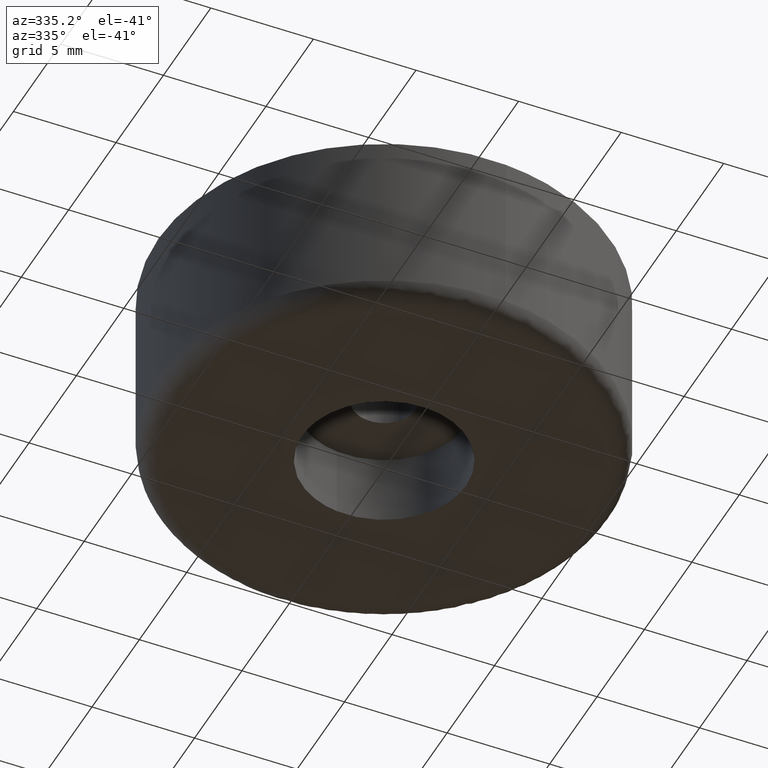
[diagram: clean part render]
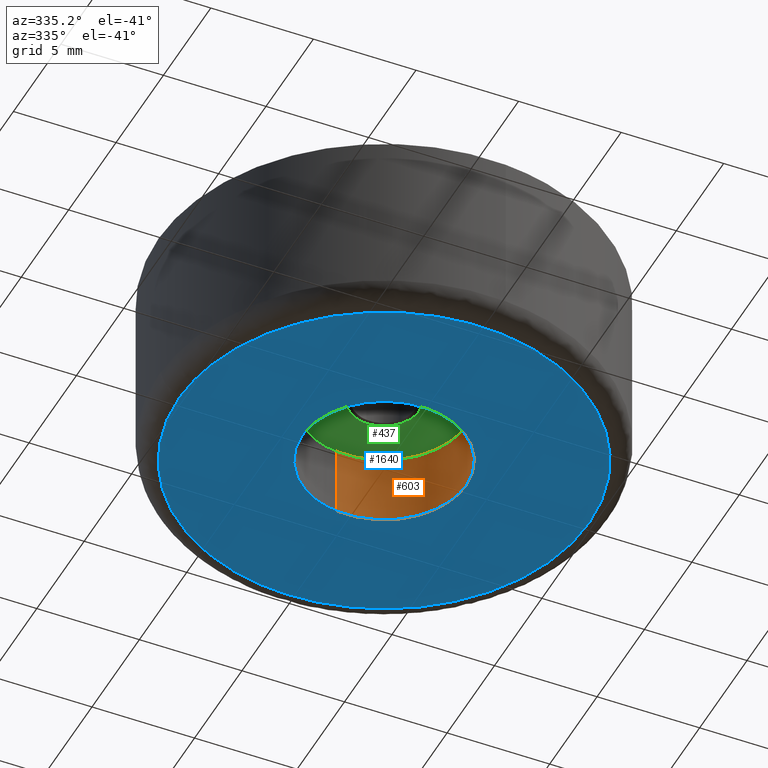
[diagram: same view with three faces highlighted in distinct colors, each labeled with its STEP entity id]
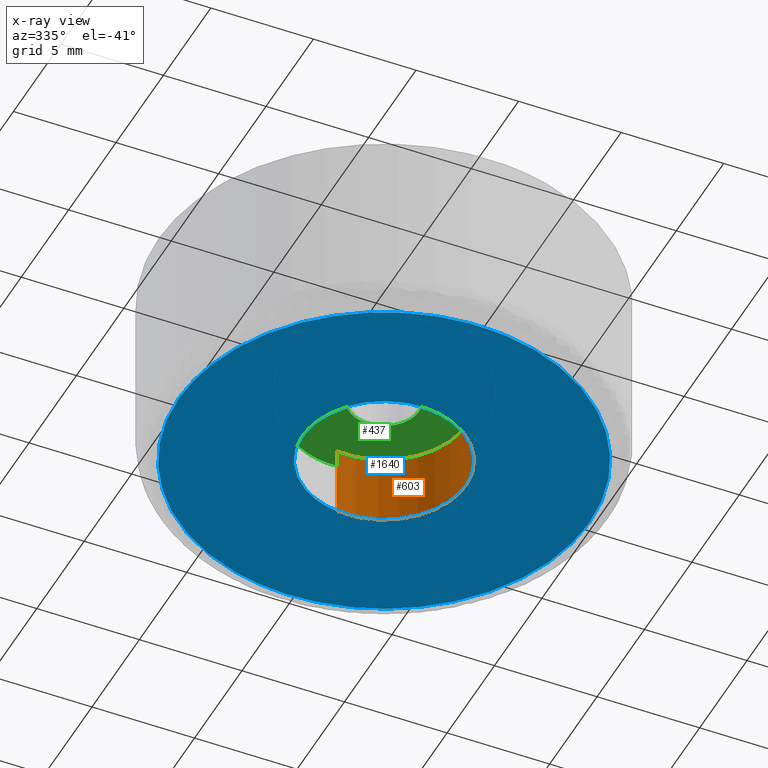
[diagram: x-ray of the same camera — body ghosted, the three highlighted faces saturated]
A machine part, auxiliary view with three faces highlighted in distinct colors.
The next image is the same camera in x-ray (body ghosted, the three faces saturated) — at least one of them is partly hidden behind the body in this view.
Their STEP definitions:

[orange] entity #603 — the highlighted face is a freeform B-spline surface patch.
#497=CARTESIAN_POINT('',(-0.531081981653830,3.965031593577629,3.587500000000001));
#498=CARTESIAN_POINT('',(-0.501526358987366,3.968544727347870,3.587500000000000));
#499=CARTESIAN_POINT('',(-0.358458914551911,3.985550461794422,3.587500000000000));
#500=CARTESIAN_POINT('',(-0.244194158139428,3.992539193687467,3.587500000000000));
#501=CARTESIAN_POINT('',(3.748345035548039,4.236733351826894,3.587500000000001));
#502=CARTESIAN_POINT('',(3.992539193687467,0.244194158139428,3.587500000000000));
#503=CARTESIAN_POINT('',(4.236733351826894,-3.748345035548039,3.587500000000001));
#504=CARTESIAN_POINT('',(0.215480847990749,-3.994295374969354,3.587500000000000));
#505=CARTESIAN_POINT('',(0.186938098884701,-3.996041124290977,3.587499999999999));
#506=CARTESIAN_POINT('',(-0.531081981653830,3.965031593577629,-0.089687500000000));
#507=CARTESIAN_POINT('',(-0.501526358987366,3.968544727347870,-0.089687500000000));
#508=CARTESIAN_POINT('',(-0.358458914551911,3.985550461794422,-0.089687500000000));
#509=CARTESIAN_POINT('',(-0.244194158139428,3.992539193687467,-0.089687500000000));
#510=CARTESIAN_POINT('',(3.748345035548039,4.236733351826894,-0.089687500000000));
#511=CARTESIAN_POINT('',(3.992539193687467,0.244194158139428,-0.089687500000000));
#512=CARTESIAN_POINT('',(4.236733351826894,-3.748345035548039,-0.089687500000000));
#513=CARTESIAN_POINT('',(0.215480847990749,-3.994295374969354,-0.089687500000000));
#514=CARTESIAN_POINT('',(0.186938098884701,-3.996041124290977,-0.089687500000000));
#522=(BOUNDED_SURFACE()B_SPLINE_SURFACE(2,1,((#497,#506),(#498,#507),(#499,#508),(#500,#509),(#501,#510),(#502,#511),(#503,#512),(#504,#513),(#505,#514)),.UNSPECIFIED.,.F.,.F.,.U.)B_SPLINE_SURFACE_WITH_KNOTS((3,1,2,2,1,3),(2,2),(0.0,0.067597935587385,0.332694615506166,6.960111613475685,13.587528611445210,13.655135200790710),(0.0,3.677187500000001),.UNSPECIFIED.)GEOMETRIC_REPRESENTATION_ITEM()RATIONAL_B_SPLINE_SURFACE(((0.972008920550601,0.972008920550601),(0.974757360672864,0.974757360672864),(0.988284271247462,0.988284271247462),(1.0,1.0),(0.707106781186548,0.707106781186548),(1.0,1.0),(0.707106781186548,0.707106781186548),(1.002987817361194,1.002987817361194),(1.005975634722388,1.005975634722388)))REPRESENTATION_ITEM('')SURFACE());
#523=CARTESIAN_POINT('',(-0.472135409144780,3.972038287256218,-7.780033E-015));
#524=VERTEX_POINT('',#523);
#525=CARTESIAN_POINT('',(4.0,0.0,0.0));
#526=VERTEX_POINT('',#525);
#527=CARTESIAN_POINT('',(-0.472135409144780,3.972038287256219,-7.780033E-015));
#528=CARTESIAN_POINT('',(-0.236895705781812,4.000000000000000,0.0));
#529=CARTESIAN_POINT('',(0.0,4.0,0.0));
#530=CARTESIAN_POINT('',(4.000000000000000,4.000000000000000,0.0));
#531=CARTESIAN_POINT('',(4.0,0.0,0.0));
#539=(BOUNDED_CURVE()B_SPLINE_CURVE(2,(#527,#528,#529,#530,#531),.UNSPECIFIED.,.F.,.U.)B_SPLINE_CURVE_WITH_KNOTS((3,2,3),(0.229562538592431,0.250000000000000,0.500000000000000),.UNSPECIFIED.)CURVE()GEOMETRIC_REPRESENTATION_ITEM()RATIONAL_B_SPLINE_CURVE((0.956026881741091,0.976056024575846,1.0,0.707106781186548,1.0))REPRESENTATION_ITEM(''));
#540=EDGE_CURVE('',#524,#526,#539,.T.);
#541=ORIENTED_EDGE('',*,*,#540,.T.);
#542=CARTESIAN_POINT('',(0.244188269697965,-3.992539553831259,-5.921652E-014));
#543=VERTEX_POINT('',#542);
#544=CARTESIAN_POINT('',(4.0,0.0,0.0));
#545=CARTESIAN_POINT('',(4.0,-3.762829827640497,0.0));
#546=CARTESIAN_POINT('',(0.244188269697965,-3.992539553831259,-5.921652E-014));
#554=(BOUNDED_CURVE()B_SPLINE_CURVE(2,(#544,#545,#546),.UNSPECIFIED.,.F.,.U.)B_SPLINE_CURVE_WITH_KNOTS((3,3),(0.500000000000000,0.739333216724596),.UNSPECIFIED.)CURVE()GEOMETRIC_REPRESENTATION_ITEM()RATIONAL_B_SPLINE_CURVE((1.0,0.719603695138222,0.976072587078522))REPRESENTATION_ITEM(''));
#555=EDGE_CURVE('',#526,#543,#554,.T.);
#556=ORIENTED_EDGE('',*,*,#555,.T.);
#557=CARTESIAN_POINT('',(0.244188342415201,-3.992539549383896,3.500000000000000));
#558=VERTEX_POINT('',#557);
#559=CARTESIAN_POINT('',(0.244188342415201,-3.992539549383896,3.500000000000000));
#560=CARTESIAN_POINT('',(0.244188269697965,-3.992539553831259,-5.921652E-014));
#561=QUASI_UNIFORM_CURVE('',1,(#559,#560),.UNSPECIFIED.,.F.,.U.);
#562=EDGE_CURVE('',#558,#543,#561,.T.);
#563=ORIENTED_EDGE('',*,*,#562,.F.);
#564=CARTESIAN_POINT('',(4.0,0.0,3.500000000000000));
#565=VERTEX_POINT('',#564);
#566=CARTESIAN_POINT('',(4.0,0.0,3.500000000000000));
#567=CARTESIAN_POINT('',(4.000000000000001,-3.762829758978972,3.500000000000000));
#568=CARTESIAN_POINT('',(0.244188342415201,-3.992539549383895,3.500000000000000));
#576=(BOUNDED_CURVE()B_SPLINE_CURVE(2,(#566,#567,#568),.UNSPECIFIED.,.F.,.U.)B_SPLINE_CURVE_WITH_KNOTS((3,3),(0.500000000000000,0.739333213581951),.UNSPECIFIED.)CURVE()GEOMETRIC_REPRESENTATION_ITEM()RATIONAL_B_SPLINE_CURVE((1.0,0.719603698820059,0.976072580343222))REPRESENTATION_ITEM(''));
#577=EDGE_CURVE('',#565,#558,#576,.T.);
#578=ORIENTED_EDGE('',*,*,#577,.F.);
#579=CARTESIAN_POINT('',(-0.472135428042880,3.972038285009908,3.500000000000000));
#580=VERTEX_POINT('',#579);
#581=CARTESIAN_POINT('',(-0.472135428042880,3.972038285009907,3.500000000000000));
#582=CARTESIAN_POINT('',(-0.236895715330755,4.0,3.500000000000000));
#583=CARTESIAN_POINT('',(0.0,4.0,3.500000000000000));
#584=CARTESIAN_POINT('',(4.000000000000000,4.000000000000000,3.499999999999999));
#585=CARTESIAN_POINT('',(4.0,0.0,3.500000000000000));
#593=(BOUNDED_CURVE()B_SPLINE_CURVE(2,(#581,#582,#583,#584,#585),.UNSPECIFIED.,.F.,.U.)B_SPLINE_CURVE_WITH_KNOTS((3,2,3),(0.229562537788350,0.250000000000000,0.500000000000000),.UNSPECIFIED.)CURVE()GEOMETRIC_REPRESENTATION_ITEM()RATIONAL_B_SPLINE_CURVE((0.956026880165058,0.976056023633806,1.0,0.707106781186548,1.0))REPRESENTATION_ITEM(''));
#594=EDGE_CURVE('',#580,#565,#593,.T.);
#595=ORIENTED_EDGE('',*,*,#594,.F.);
#596=CARTESIAN_POINT('',(-0.472135428042880,3.972038285009908,3.500000000000000));
#597=CARTESIAN_POINT('',(-0.472135409144780,3.972038287256218,-7.780033E-015));
#598=QUASI_UNIFORM_CURVE('',1,(#596,#597),.UNSPECIFIED.,.F.,.U.);
#599=EDGE_CURVE('',#580,#524,#598,.T.);
#600=ORIENTED_EDGE('',*,*,#599,.T.);
#601=EDGE_LOOP('',(#541,#556,#563,#578,#595,#600));
#602=FACE_OUTER_BOUND('',#601,.T.);
#603=ADVANCED_FACE('',(#602),#522,.F.);

[blue] entity #1640 — the highlighted face is a freeform B-spline surface patch.
#523=CARTESIAN_POINT('',(-0.472135409144780,3.972038287256218,-7.780033E-015));
#524=VERTEX_POINT('',#523);
#525=CARTESIAN_POINT('',(4.0,0.0,0.0));
#526=VERTEX_POINT('',#525);
#527=CARTESIAN_POINT('',(-0.472135409144780,3.972038287256219,-7.780033E-015));
#528=CARTESIAN_POINT('',(-0.236895705781812,4.000000000000000,0.0));
#529=CARTESIAN_POINT('',(0.0,4.0,0.0));
#530=CARTESIAN_POINT('',(4.000000000000000,4.000000000000000,0.0));
#531=CARTESIAN_POINT('',(4.0,0.0,0.0));
#539=(BOUNDED_CURVE()B_SPLINE_CURVE(2,(#527,#528,#529,#530,#531),.UNSPECIFIED.,.F.,.U.)B_SPLINE_CURVE_WITH_KNOTS((3,2,3),(0.229562538592431,0.250000000000000,0.500000000000000),.UNSPECIFIED.)CURVE()GEOMETRIC_REPRESENTATION_ITEM()RATIONAL_B_SPLINE_CURVE((0.956026881741091,0.976056024575846,1.0,0.707106781186548,1.0))REPRESENTATION_ITEM(''));
#540=EDGE_CURVE('',#524,#526,#539,.T.);
#542=CARTESIAN_POINT('',(0.244188269697965,-3.992539553831259,-5.921652E-014));
#543=VERTEX_POINT('',#542);
#544=CARTESIAN_POINT('',(4.0,0.0,0.0));
#545=CARTESIAN_POINT('',(4.0,-3.762829827640497,0.0));
#546=CARTESIAN_POINT('',(0.244188269697965,-3.992539553831259,-5.921652E-014));
#554=(BOUNDED_CURVE()B_SPLINE_CURVE(2,(#544,#545,#546),.UNSPECIFIED.,.F.,.U.)B_SPLINE_CURVE_WITH_KNOTS((3,3),(0.500000000000000,0.739333216724596),.UNSPECIFIED.)CURVE()GEOMETRIC_REPRESENTATION_ITEM()RATIONAL_B_SPLINE_CURVE((1.0,0.719603695138222,0.976072587078522))REPRESENTATION_ITEM(''));
#555=EDGE_CURVE('',#526,#543,#554,.T.);
#622=CARTESIAN_POINT('',(-4.0,0.0,0.0));
#623=VERTEX_POINT('',#622);
#624=CARTESIAN_POINT('',(-4.0,0.0,0.0));
#625=CARTESIAN_POINT('',(-4.0,3.552699481446219,0.0));
#626=CARTESIAN_POINT('',(-0.472135409144780,3.972038287256219,-7.780033E-015));
#634=(BOUNDED_CURVE()B_SPLINE_CURVE(2,(#624,#625,#626),.UNSPECIFIED.,.F.,.U.)B_SPLINE_CURVE_WITH_KNOTS((3,3),(0.0,0.229562538592431),.UNSPECIFIED.)CURVE()GEOMETRIC_REPRESENTATION_ITEM()RATIONAL_B_SPLINE_CURVE((1.0,0.731050756610702,0.956026881741091))REPRESENTATION_ITEM(''));
#635=EDGE_CURVE('',#623,#524,#634,.T.);
#669=CARTESIAN_POINT('',(0.244188269697965,-3.992539553831259,-5.921652E-014));
#670=CARTESIAN_POINT('',(0.122208100718648,-4.000000000000001,0.0));
#671=CARTESIAN_POINT('',(0.0,-4.0,0.0));
#672=CARTESIAN_POINT('',(-4.000000000000000,-4.000000000000000,0.0));
#673=CARTESIAN_POINT('',(-4.0,0.0,0.0));
#681=(BOUNDED_CURVE()B_SPLINE_CURVE(2,(#669,#670,#671,#672,#673),.UNSPECIFIED.,.F.,.U.)B_SPLINE_CURVE_WITH_KNOTS((3,2,3),(0.739333216724596,0.750000000000000,1.0),.UNSPECIFIED.)CURVE()GEOMETRIC_REPRESENTATION_ITEM()RATIONAL_B_SPLINE_CURVE((0.976072587078522,0.987503086048325,1.0,0.707106781186548,1.0))REPRESENTATION_ITEM(''));
#682=EDGE_CURVE('',#543,#623,#681,.T.);
#1502=CARTESIAN_POINT('',(-0.251300954478001,9.996841893394862,1.718108E-016));
#1503=VERTEX_POINT('',#1502);
#1504=CARTESIAN_POINT('',(10.0,0.0,0.0));
#1505=VERTEX_POINT('',#1504);
#1506=CARTESIAN_POINT('',(-0.251300954478001,9.996841893394862,1.718108E-016));
#1507=CARTESIAN_POINT('',(-0.125670321264293,10.000000000000002,0.0));
#1508=CARTESIAN_POINT('',(0.0,10.0,0.0));
#1509=CARTESIAN_POINT('',(10.000000000000002,10.000000000000002,0.0));
#1510=CARTESIAN_POINT('',(10.0,0.0,0.0));
#1518=(BOUNDED_CURVE()B_SPLINE_CURVE(2,(#1506,#1507,#1508,#1509,#1510),.UNSPECIFIED.,.F.,.U.)B_SPLINE_CURVE_WITH_KNOTS((3,2,3),(0.245579891768740,0.250000000000000,0.500000000000000),.UNSPECIFIED.)CURVE()GEOMETRIC_REPRESENTATION_ITEM()RATIONAL_B_SPLINE_CURVE((0.989826157679164,0.994821521090570,1.0,0.707106781186548,1.0))REPRESENTATION_ITEM(''));
#1519=EDGE_CURVE('',#1503,#1505,#1518,.T.);
#1538=CARTESIAN_POINT('',(-9.996841893421046,-0.251300954480380,1.874299E-016));
#1539=VERTEX_POINT('',#1538);
#1553=CARTESIAN_POINT('',(10.0,0.0,0.0));
#1554=CARTESIAN_POINT('',(10.000000000000002,-10.000000000000002,0.0));
#1555=CARTESIAN_POINT('',(0.0,-10.0,0.0));
#1556=CARTESIAN_POINT('',(-9.751778761743656,-10.0,0.0));
#1557=CARTESIAN_POINT('',(-9.996841893421046,-0.251300954480380,1.874299E-016));
#1565=(BOUNDED_CURVE()B_SPLINE_CURVE(2,(#1553,#1554,#1555,#1556,#1557),.UNSPECIFIED.,.F.,.U.)B_SPLINE_CURVE_WITH_KNOTS((3,2,3),(0.500000000000000,0.750000000000000,0.995579891768680),.UNSPECIFIED.)CURVE()GEOMETRIC_REPRESENTATION_ITEM()RATIONAL_B_SPLINE_CURVE((1.0,0.707106781186548,1.0,0.712285260096048,0.989826157679029))REPRESENTATION_ITEM(''));
#1566=EDGE_CURVE('',#1505,#1539,#1565,.T.);
#1588=CARTESIAN_POINT('',(-10.0,0.0,0.0));
#1589=VERTEX_POINT('',#1588);
#1590=CARTESIAN_POINT('',(-10.0,0.0,0.0));
#1591=CARTESIAN_POINT('',(-10.0,9.751778761746998,0.0));
#1592=CARTESIAN_POINT('',(-0.251300954478001,9.996841893394862,1.718108E-016));
#1600=(BOUNDED_CURVE()B_SPLINE_CURVE(2,(#1590,#1591,#1592),.UNSPECIFIED.,.F.,.U.)B_SPLINE_CURVE_WITH_KNOTS((3,3),(0.0,0.245579891768740),.UNSPECIFIED.)CURVE()GEOMETRIC_REPRESENTATION_ITEM()RATIONAL_B_SPLINE_CURVE((1.0,0.712285260095977,0.989826157679164))REPRESENTATION_ITEM(''));
#1601=EDGE_CURVE('',#1589,#1503,#1600,.T.);
#1603=CARTESIAN_POINT('',(-9.996841893421046,-0.251300954480380,1.874299E-016));
#1604=CARTESIAN_POINT('',(-9.999999999999998,-0.125670321266014,0.0));
#1605=CARTESIAN_POINT('',(-10.0,0.0,0.0));
#1613=(BOUNDED_CURVE()B_SPLINE_CURVE(2,(#1603,#1604,#1605),.UNSPECIFIED.,.F.,.U.)B_SPLINE_CURVE_WITH_KNOTS((3,3),(0.995579891768680,1.0),.UNSPECIFIED.)CURVE()GEOMETRIC_REPRESENTATION_ITEM()RATIONAL_B_SPLINE_CURVE((0.989826157679028,0.994821521090500,1.0))REPRESENTATION_ITEM(''));
#1614=EDGE_CURVE('',#1539,#1589,#1613,.T.);
#1623=CARTESIAN_POINT('',(-10.998999961236120,-10.998013110995339,0.0));
#1624=CARTESIAN_POINT('',(10.999000497677921,-10.998013110995339,0.0));
#1625=CARTESIAN_POINT('',(-10.998999961236120,10.995643701795210,0.0));
#1626=CARTESIAN_POINT('',(10.999000497677921,10.995643701795210,0.0));
#1627=B_SPLINE_SURFACE_WITH_KNOTS('',1,1,((#1623,#1625),(#1624,#1626)),.UNSPECIFIED.,.F.,.F.,.U.,(2,2),(2,2),(0.0,21.998000458914039),(0.0,21.993656812790540),.UNSPECIFIED.);
#1628=ORIENTED_EDGE('',*,*,#1601,.T.);
#1629=ORIENTED_EDGE('',*,*,#1519,.T.);
#1630=ORIENTED_EDGE('',*,*,#1566,.T.);
#1631=ORIENTED_EDGE('',*,*,#1614,.T.);
#1632=EDGE_LOOP('',(#1628,#1629,#1630,#1631));
#1633=FACE_OUTER_BOUND('',#1632,.T.);
#1634=ORIENTED_EDGE('',*,*,#555,.F.);
#1635=ORIENTED_EDGE('',*,*,#540,.F.);
#1636=ORIENTED_EDGE('',*,*,#635,.F.);
#1637=ORIENTED_EDGE('',*,*,#682,.F.);
#1638=EDGE_LOOP('',(#1634,#1635,#1636,#1637));
#1639=FACE_BOUND('',#1638,.T.);
#1640=ADVANCED_FACE('',(#1633,#1639),#1627,.F.);

[green] entity #437 — the highlighted face is a freeform B-spline surface patch.
#66=CARTESIAN_POINT('',(-0.200658198949654,1.688116194814291,3.500000000000000));
#67=VERTEX_POINT('',#66);
#68=CARTESIAN_POINT('',(1.700000000000000,0.0,3.500000000000000));
#69=VERTEX_POINT('',#68);
#70=CARTESIAN_POINT('',(-0.200658198949654,1.688116194814290,3.500000000000001));
#71=CARTESIAN_POINT('',(-0.100681003441763,1.700000000000000,3.499999999999999));
#72=CARTESIAN_POINT('',(0.0,1.700000000000000,3.500000000000000));
#73=CARTESIAN_POINT('',(1.700000000000000,1.700000000000000,3.499999999999999));
#74=CARTESIAN_POINT('',(1.700000000000000,0.0,3.500000000000000));
#82=(BOUNDED_CURVE()B_SPLINE_CURVE(2,(#70,#71,#72,#73,#74),.UNSPECIFIED.,.F.,.U.)B_SPLINE_CURVE_WITH_KNOTS((3,2,3),(0.229562473509004,0.250000000000000,0.500000000000000),.UNSPECIFIED.)CURVE()GEOMETRIC_REPRESENTATION_ITEM()RATIONAL_B_SPLINE_CURVE((0.956026754174870,0.976055948325868,1.0,0.707106781186548,1.0))REPRESENTATION_ITEM(''));
#83=EDGE_CURVE('',#67,#69,#82,.T.);
#85=CARTESIAN_POINT('',(0.103782517247881,-1.696829157314811,3.500000000000000));
#86=VERTEX_POINT('',#85);
#87=CARTESIAN_POINT('',(1.700000000000000,0.0,3.500000000000000));
#88=CARTESIAN_POINT('',(1.700000000000000,-1.599200313666744,3.500000000000000));
#89=CARTESIAN_POINT('',(0.103782517247881,-1.696829157314812,3.500000000000000));
#97=(BOUNDED_CURVE()B_SPLINE_CURVE(2,(#87,#88,#89),.UNSPECIFIED.,.F.,.U.)B_SPLINE_CURVE_WITH_KNOTS((3,3),(0.500000000000000,0.739332962234113),.UNSPECIFIED.)CURVE()GEOMETRIC_REPRESENTATION_ITEM()RATIONAL_B_SPLINE_CURVE((1.0,0.719603993292368,0.976072041656367))REPRESENTATION_ITEM(''));
#98=EDGE_CURVE('',#69,#86,#97,.T.);
#165=CARTESIAN_POINT('',(-1.700000000000000,0.0,3.500000000000000));
#166=VERTEX_POINT('',#165);
#167=CARTESIAN_POINT('',(-1.700000000000000,0.0,3.500000000000000));
#168=CARTESIAN_POINT('',(-1.700000000000000,1.509896694057580,3.500000000000000));
#169=CARTESIAN_POINT('',(-0.200658198949654,1.688116194814291,3.500000000000000));
#177=(BOUNDED_CURVE()B_SPLINE_CURVE(2,(#167,#168,#169),.UNSPECIFIED.,.F.,.U.)B_SPLINE_CURVE_WITH_KNOTS((3,3),(0.0,0.229562473509004),.UNSPECIFIED.)CURVE()GEOMETRIC_REPRESENTATION_ITEM()RATIONAL_B_SPLINE_CURVE((1.0,0.731050832860680,0.956026754174870))REPRESENTATION_ITEM(''));
#178=EDGE_CURVE('',#166,#67,#177,.T.);
#212=CARTESIAN_POINT('',(0.103782517247881,-1.696829157314812,3.500000000000000));
#213=CARTESIAN_POINT('',(0.051939697646334,-1.700000000000000,3.500000000000000));
#214=CARTESIAN_POINT('',(0.0,-1.700000000000000,3.500000000000000));
#215=CARTESIAN_POINT('',(-1.700000000000000,-1.700000000000000,3.499999999999999));
#216=CARTESIAN_POINT('',(-1.700000000000000,0.0,3.500000000000000));
#224=(BOUNDED_CURVE()B_SPLINE_CURVE(2,(#212,#213,#214,#215,#216),.UNSPECIFIED.,.F.,.U.)B_SPLINE_CURVE_WITH_KNOTS((3,2,3),(0.739332962234113,0.750000000000000,1.0),.UNSPECIFIED.)CURVE()GEOMETRIC_REPRESENTATION_ITEM()RATIONAL_B_SPLINE_CURVE((0.976072041656367,0.987502787894179,1.0,0.707106781186548,1.0))REPRESENTATION_ITEM(''));
#225=EDGE_CURVE('',#86,#166,#224,.T.);
#256=CARTESIAN_POINT('',(-0.578361962546024,4.865747367079998,3.500000000000247));
#257=VERTEX_POINT('',#256);
#258=CARTESIAN_POINT('',(4.900000000000000,0.0,3.500000000000000));
#259=VERTEX_POINT('',#258);
#260=CARTESIAN_POINT('',(-0.578361962546024,4.865747367079998,3.500000000000247));
#261=CARTESIAN_POINT('',(-0.290195262067679,4.900000000000000,3.500000000000000));
#262=CARTESIAN_POINT('',(0.0,4.900000000000000,3.500000000000000));
#263=CARTESIAN_POINT('',(4.899999999999999,4.899999999999999,3.500000000000000));
#264=CARTESIAN_POINT('',(4.900000000000000,0.0,3.500000000000000));
#272=(BOUNDED_CURVE()B_SPLINE_CURVE(2,(#260,#261,#262,#263,#264),.UNSPECIFIED.,.F.,.U.)B_SPLINE_CURVE_WITH_KNOTS((3,2,3),(0.229562674526490,0.250000000000000,0.500000000000000),.UNSPECIFIED.)CURVE()GEOMETRIC_REPRESENTATION_ITEM()RATIONAL_B_SPLINE_CURVE((0.956027148177749,0.976056183832502,1.0,0.707106781186547,1.0))REPRESENTATION_ITEM(''));
#273=EDGE_CURVE('',#257,#259,#272,.T.);
#314=CARTESIAN_POINT('',(0.299129867093812,-4.890861000125495,3.500000000000104));
#315=VERTEX_POINT('',#314);
#321=CARTESIAN_POINT('',(4.900000000000000,0.0,3.500000000000000));
#322=CARTESIAN_POINT('',(4.899999999999998,-4.609467259574525,3.500000000000000));
#323=CARTESIAN_POINT('',(0.299129867093812,-4.890861000125496,3.500000000000104));
#331=(BOUNDED_CURVE()B_SPLINE_CURVE(2,(#321,#322,#323),.UNSPECIFIED.,.F.,.U.)B_SPLINE_CURVE_WITH_KNOTS((3,3),(0.500000000000000,0.739333243652911),.UNSPECIFIED.)CURVE()GEOMETRIC_REPRESENTATION_ITEM()RATIONAL_B_SPLINE_CURVE((1.0,0.719603663589738,0.976072644791163))REPRESENTATION_ITEM(''));
#332=EDGE_CURVE('',#259,#315,#331,.T.);
#355=CARTESIAN_POINT('',(-4.900000000000000,0.0,3.500000000000000));
#356=VERTEX_POINT('',#355);
#357=CARTESIAN_POINT('',(-4.900000000000000,0.0,3.500000000000000));
#358=CARTESIAN_POINT('',(-4.900000000000000,4.352060389895565,3.500000000000000));
#359=CARTESIAN_POINT('',(-0.578361962546024,4.865747367079998,3.500000000000247));
#367=(BOUNDED_CURVE()B_SPLINE_CURVE(2,(#357,#358,#359),.UNSPECIFIED.,.F.,.U.)B_SPLINE_CURVE_WITH_KNOTS((3,3),(0.0,0.229562674526490),.UNSPECIFIED.)CURVE()GEOMETRIC_REPRESENTATION_ITEM()RATIONAL_B_SPLINE_CURVE((1.0,0.731050597354045,0.956027148177749))REPRESENTATION_ITEM(''));
#368=EDGE_CURVE('',#356,#257,#367,.T.);
#370=CARTESIAN_POINT('',(0.299129867093812,-4.890861000125496,3.500000000000104));
#371=CARTESIAN_POINT('',(0.149704540667247,-4.900000000000001,3.500000000000000));
#372=CARTESIAN_POINT('',(0.0,-4.900000000000000,3.500000000000000));
#373=CARTESIAN_POINT('',(-4.899999999999999,-4.899999999999999,3.500000000000000));
#374=CARTESIAN_POINT('',(-4.900000000000000,0.0,3.500000000000000));
#382=(BOUNDED_CURVE()B_SPLINE_CURVE(2,(#370,#371,#372,#373,#374),.UNSPECIFIED.,.F.,.U.)B_SPLINE_CURVE_WITH_KNOTS((3,2,3),(0.739333243652911,0.750000000000000,1.0),.UNSPECIFIED.)CURVE()GEOMETRIC_REPRESENTATION_ITEM()RATIONAL_B_SPLINE_CURVE((0.976072644791163,0.987503117596809,1.0,0.707106781186547,1.0))REPRESENTATION_ITEM(''));
#383=EDGE_CURVE('',#315,#356,#382,.T.);
#420=CARTESIAN_POINT('',(-5.389510073001086,-5.389390995347224,3.500000000000000));
#421=CARTESIAN_POINT('',(5.389510248238743,-5.389390995347224,3.500000000000000));
#422=CARTESIAN_POINT('',(-5.389510073001086,5.389420873367511,3.500000000000000));
#423=CARTESIAN_POINT('',(5.389510248238743,5.389420873367511,3.500000000000000));
#424=B_SPLINE_SURFACE_WITH_KNOTS('',1,1,((#420,#422),(#421,#423)),.UNSPECIFIED.,.F.,.F.,.U.,(2,2),(2,2),(0.0,10.779020321239830),(0.0,10.778811868714740),.UNSPECIFIED.);
#425=ORIENTED_EDGE('',*,*,#368,.T.);
#426=ORIENTED_EDGE('',*,*,#273,.T.);
#427=ORIENTED_EDGE('',*,*,#332,.T.);
#428=ORIENTED_EDGE('',*,*,#383,.T.);
#429=EDGE_LOOP('',(#425,#426,#427,#428));
#430=FACE_OUTER_BOUND('',#429,.T.);
#431=ORIENTED_EDGE('',*,*,#98,.F.);
#432=ORIENTED_EDGE('',*,*,#83,.F.);
#433=ORIENTED_EDGE('',*,*,#178,.F.);
#434=ORIENTED_EDGE('',*,*,#225,.F.);
#435=EDGE_LOOP('',(#431,#432,#433,#434));
#436=FACE_BOUND('',#435,.T.);
#437=ADVANCED_FACE('',(#430,#436),#424,.F.);